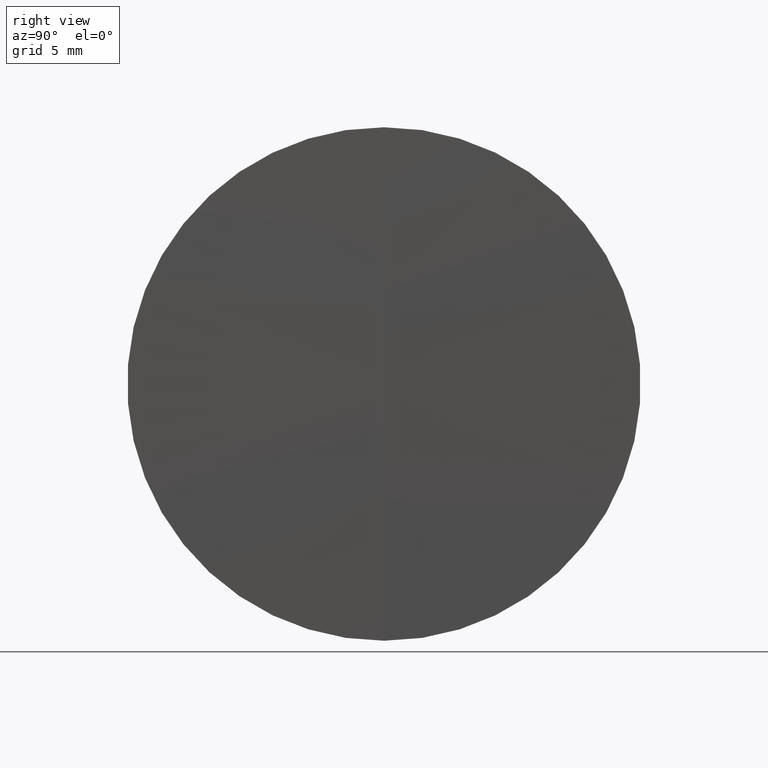
[diagram: clean part render]
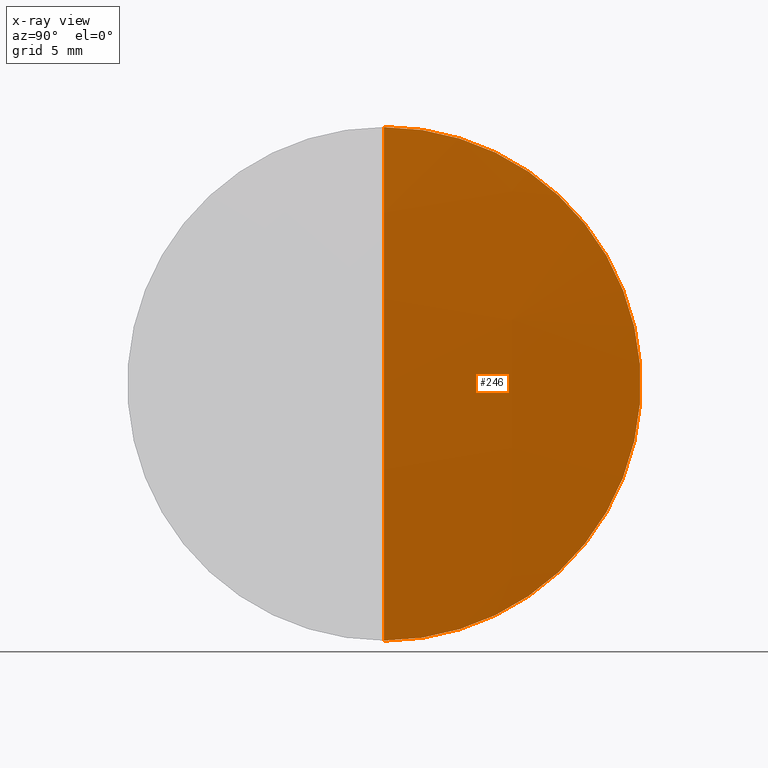
[diagram: x-ray — body ghosted, one internal face saturated and labeled with its STEP entity id]
A machine part, right view, then the same camera in x-ray: the body is ghosted and one INTERNAL B-rep face — a face not visible from any outside direction — is saturated and labeled: STEP entity #246.
In plain terms, the highlighted spherical surface has radius 203 mm.
Its self-contained STEP definition (entity closure, byte-faithful):
#5 = VERTEX_POINT ( 'NONE', #134 ) ;
#13 = CARTESIAN_POINT ( 'NONE',  ( 217.8796689735747800, 0.0000000000000000000, 1.244371753850170700E-014 ) ) ;
#19 = SPHERICAL_SURFACE ( 'NONE', #67, 203.0000000000000300 ) ;
#26 = DIRECTION ( 'NONE',  ( 0.0000000000000000000, 0.0000000000000000000, -1.000000000000000000 ) ) ;
#35 = DIRECTION ( 'NONE',  ( 0.0000000000000000000, 0.0000000000000000000, 1.000000000000000000 ) ) ;
#37 = EDGE_CURVE ( 'NONE', #195, #5, #52, .T. ) ;
#42 = CARTESIAN_POINT ( 'NONE',  ( 217.4944512575927400, 0.0000000000000000000, 0.0000000000000000000 ) ) ;
#49 = CARTESIAN_POINT ( 'NONE',  ( 14.87966897357473400, 0.0000000000000000000, 1.355252715606880500E-017 ) ) ;
#52 = CIRCLE ( 'NONE', #208, 203.0000000000000300 ) ;
#67 = AXIS2_PLACEMENT_3D ( 'NONE', #254, #103, #35 ) ;
#69 = DIRECTION ( 'NONE',  ( 0.0000000000000000000, 0.0000000000000000000, 1.000000000000000000 ) ) ;
#82 = EDGE_CURVE ( 'NONE', #195, #86, #268, .T. ) ;
#86 = VERTEX_POINT ( 'NONE', #243 ) ;
#103 = DIRECTION ( 'NONE',  ( 0.0000000000000000000, 1.000000000000000000, 0.0000000000000000000 ) ) ;
#107 = AXIS2_PLACEMENT_3D ( 'NONE', #42, #236, #69 ) ;
#133 = DIRECTION ( 'NONE',  ( 0.0000000000000000000, -1.224646799147353500E-016, 1.000000000000000000 ) ) ;
#134 = CARTESIAN_POINT ( 'NONE',  ( 217.4944512575927400, 1.530808498934191300E-015, -12.49999999999999800 ) ) ;
#138 = ORIENTED_EDGE ( 'NONE', *, *, #82, .F. ) ;
#165 = CARTESIAN_POINT ( 'NONE',  ( 14.87966897357473400, 0.0000000000000000000, 1.355252715606880500E-017 ) ) ;
#195 = VERTEX_POINT ( 'NONE', #13 ) ;
#208 = AXIS2_PLACEMENT_3D ( 'NONE', #165, #321, #133 ) ;
#216 = DIRECTION ( 'NONE',  ( 0.0000000000000000000, -1.000000000000000000, 0.0000000000000000000 ) ) ;
#222 = CIRCLE ( 'NONE', #107, 12.49999999999999800 ) ;
#236 = DIRECTION ( 'NONE',  ( -1.000000000000000000, -0.0000000000000000000, -0.0000000000000000000 ) ) ;
#243 = CARTESIAN_POINT ( 'NONE',  ( 217.4944512575927400, 0.0000000000000000000, 12.49999999999999800 ) ) ;
#246 = ADVANCED_FACE ( 'NONE', ( #301 ), #19, .T. ) ;
#254 = CARTESIAN_POINT ( 'NONE',  ( 14.87966897357473400, 0.0000000000000000000, 1.355252715606880500E-017 ) ) ;
#268 = CIRCLE ( 'NONE', #273, 203.0000000000000300 ) ;
#270 = ORIENTED_EDGE ( 'NONE', *, *, #37, .T. ) ;
#271 = EDGE_CURVE ( 'NONE', #86, #5, #222, .T. ) ;
#273 = AXIS2_PLACEMENT_3D ( 'NONE', #49, #216, #26 ) ;
#301 = FACE_OUTER_BOUND ( 'NONE', #308, .T. ) ;
#308 = EDGE_LOOP ( 'NONE', ( #138, #270, #334 ) ) ;
#321 = DIRECTION ( 'NONE',  ( -0.0000000000000000000, 1.000000000000000000, 1.224646799147353200E-016 ) ) ;
#334 = ORIENTED_EDGE ( 'NONE', *, *, #271, .F. ) ;